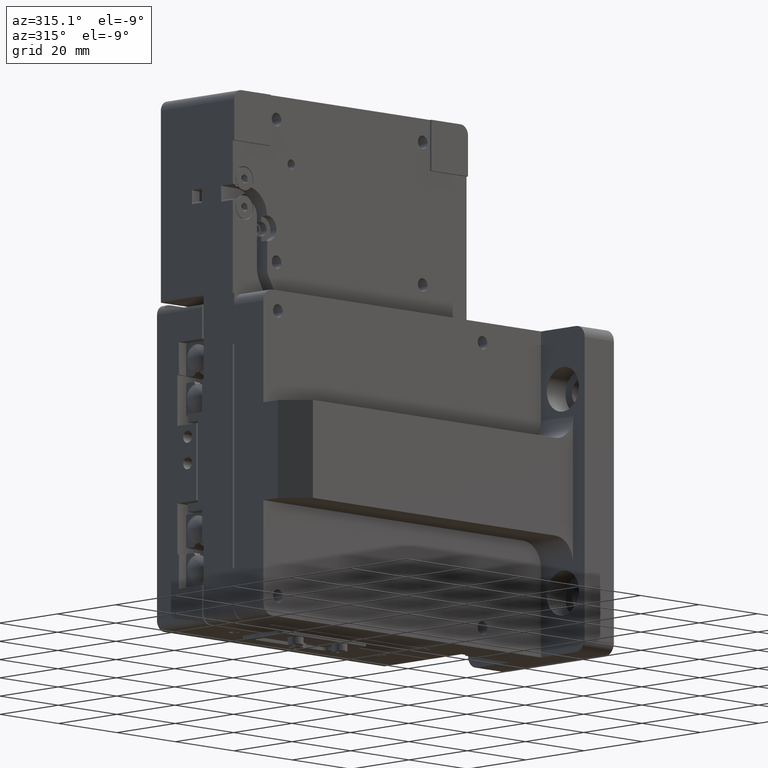
[diagram: clean part render]
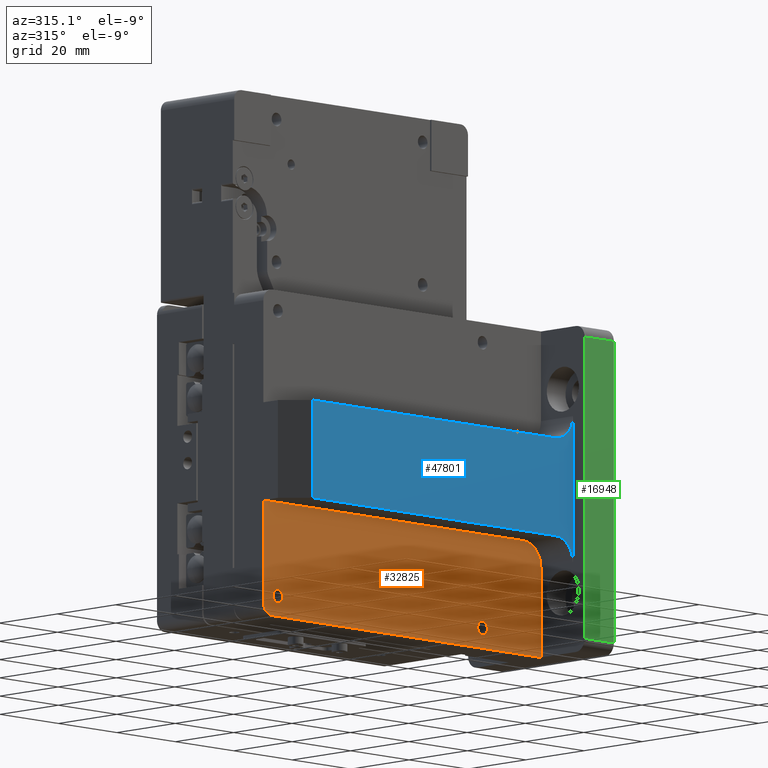
[diagram: same view with three faces highlighted in distinct colors, each labeled with its STEP entity id]
A machine part, auxiliary view with three faces highlighted in distinct colors.
Their STEP definitions:

[orange] entity #32825 — the highlighted planar face has unit normal (0, -1, -0).
#383 = ORIENTED_EDGE ( 'NONE', *, *, #28991, .T. ) ;
#999 = VERTEX_POINT ( 'NONE', #14349 ) ;
#2064 = CIRCLE ( 'NONE', #36663, 1.649999999999984812 ) ;
#2484 = DIRECTION ( 'NONE',  ( 0.000000000000000000, -0.000000000000000000, -1.000000000000000000 ) ) ;
#3181 = CARTESIAN_POINT ( 'NONE',  ( -5.000000000000000888, 100.0000000000000000, -33.35000000000001563 ) ) ;
#3557 = ORIENTED_EDGE ( 'NONE', *, *, #30931, .T. ) ;
#3736 = EDGE_LOOP ( 'NONE', ( #17820, #56244 ) ) ;
#4012 = DIRECTION ( 'NONE',  ( -1.000000000000000000, -1.095614826932720471E-16, 0.000000000000000000 ) ) ;
#5173 = EDGE_CURVE ( 'NONE', #39848, #26115, #7502, .T. ) ;
#7502 = LINE ( 'NONE', #56275, #10694 ) ;
#7508 = CIRCLE ( 'NONE', #24782, 1.649999999999984812 ) ;
#7718 = VERTEX_POINT ( 'NONE', #58597 ) ;
#8069 = VERTEX_POINT ( 'NONE', #54344 ) ;
#8693 = EDGE_CURVE ( 'NONE', #60601, #7718, #34024, .T. ) ;
#10694 = VECTOR ( 'NONE', #22143, 1000.000000000000000 ) ;
#11172 = DIRECTION ( 'NONE',  ( 0.000000000000000000, 0.000000000000000000, -1.000000000000000000 ) ) ;
#11843 = CARTESIAN_POINT ( 'NONE',  ( -5.000000000000000888, 102.0000000000000142, -37.00000000000000000 ) ) ;
#13599 = EDGE_CURVE ( 'NONE', #7718, #60601, #57441, .T. ) ;
#13692 = LINE ( 'NONE', #33131, #20940 ) ;
#14349 = CARTESIAN_POINT ( 'NONE',  ( -4.999999999999992006, 16.00000000000000711, -12.00000000000000000 ) ) ;
#15322 = DIRECTION ( 'NONE',  ( 1.000000000000000000, 0.000000000000000000, 0.000000000000000000 ) ) ;
#15627 = CARTESIAN_POINT ( 'NONE',  ( -5.000000000000000888, 100.0000000000000000, -35.00000000000000000 ) ) ;
#16313 = DIRECTION ( 'NONE',  ( 1.000000000000000000, 0.000000000000000000, 0.000000000000000000 ) ) ;
#17406 = VERTEX_POINT ( 'NONE', #3181 ) ;
#17744 = AXIS2_PLACEMENT_3D ( 'NONE', #50432, #16313, #45960 ) ;
#17820 = ORIENTED_EDGE ( 'NONE', *, *, #13599, .T. ) ;
#18143 = ORIENTED_EDGE ( 'NONE', *, *, #47442, .F. ) ;
#18340 = FACE_BOUND ( 'NONE', #3736, .T. ) ;
#18947 = DIRECTION ( 'NONE',  ( -1.095614826932720471E-16, 1.000000000000000000, -0.000000000000000000 ) ) ;
#20940 = VECTOR ( 'NONE', #41773, 1000.000000000000000 ) ;
#21018 = DIRECTION ( 'NONE',  ( -1.000000000000000000, -2.312964634635740985E-16, 0.000000000000000000 ) ) ;
#22143 = DIRECTION ( 'NONE',  ( 0.000000000000000000, 0.000000000000000000, 1.000000000000000000 ) ) ;
#22807 = CARTESIAN_POINT ( 'NONE',  ( -4.999999999999992006, 16.00000000000001066, -18.00000000000000711 ) ) ;
#24782 = AXIS2_PLACEMENT_3D ( 'NONE', #15627, #15322, #55177 ) ;
#25812 = CARTESIAN_POINT ( 'NONE',  ( -5.000000000000000888, 100.0000000000000000, -35.00000000000000000 ) ) ;
#26115 = VERTEX_POINT ( 'NONE', #26835 ) ;
#26261 = VECTOR ( 'NONE', #2484, 1000.000000000000000 ) ;
#26835 = CARTESIAN_POINT ( 'NONE',  ( -4.999999999999990230, 10.00000000000000888, -18.00000000000000711 ) ) ;
#27265 = CARTESIAN_POINT ( 'NONE',  ( -5.000000000000000888, 105.0000000000000000, -12.00000000000000000 ) ) ;
#28206 = AXIS2_PLACEMENT_3D ( 'NONE', #27265, #4012, #28821 ) ;
#28821 = DIRECTION ( 'NONE',  ( 1.095614826932720471E-16, -1.000000000000000000, 0.000000000000000000 ) ) ;
#28991 = EDGE_CURVE ( 'NONE', #59995, #17406, #7508, .T. ) ;
#29144 = EDGE_LOOP ( 'NONE', ( #383, #48845 ) ) ;
#30315 = CARTESIAN_POINT ( 'NONE',  ( -4.999999999999992006, 30.00000000000000000, -35.00000000000000000 ) ) ;
#30813 = VERTEX_POINT ( 'NONE', #60931 ) ;
#30931 = EDGE_CURVE ( 'NONE', #30813, #39848, #13692, .T. ) ;
#32037 = FACE_OUTER_BOUND ( 'NONE', #50079, .T. ) ;
#32825 = ADVANCED_FACE ( 'NONE', ( #32037, #18340, #46106 ), #51515, .T. ) ;
#33131 = CARTESIAN_POINT ( 'NONE',  ( -5.000000000000000888, 0.000000000000000000, -40.00000000000000000 ) ) ;
#34024 = CIRCLE ( 'NONE', #17744, 1.649999999999984812 ) ;
#36037 = DIRECTION ( 'NONE',  ( 1.000000000000000000, -0.000000000000000000, -0.000000000000000000 ) ) ;
#36112 = ORIENTED_EDGE ( 'NONE', *, *, #58548, .T. ) ;
#36663 = AXIS2_PLACEMENT_3D ( 'NONE', #25812, #45287, #11172 ) ;
#37428 = CARTESIAN_POINT ( 'NONE',  ( -5.000000000000000888, 105.0000000000000000, -12.00000000000000000 ) ) ;
#37484 = VECTOR ( 'NONE', #18947, 1000.000000000000000 ) ;
#39768 = EDGE_CURVE ( 'NONE', #51213, #8069, #61457, .T. ) ;
#39848 = VERTEX_POINT ( 'NONE', #57305 ) ;
#41773 = DIRECTION ( 'NONE',  ( 0.000000000000000000, -1.000000000000000000, -0.000000000000000000 ) ) ;
#42281 = DIRECTION ( 'NONE',  ( 2.891205793294678326E-16, -1.000000000000000000, 0.000000000000000000 ) ) ;
#42979 = CARTESIAN_POINT ( 'NONE',  ( -4.999999999999992006, 30.00000000000000000, -33.35000000000001563 ) ) ;
#44068 = DIRECTION ( 'NONE',  ( 1.000000000000000000, 0.000000000000000000, 0.000000000000000000 ) ) ;
#45287 = DIRECTION ( 'NONE',  ( 1.000000000000000000, 0.000000000000000000, 0.000000000000000000 ) ) ;
#45960 = DIRECTION ( 'NONE',  ( 0.000000000000000000, 0.000000000000000000, -1.000000000000000000 ) ) ;
#46106 = FACE_BOUND ( 'NONE', #29144, .T. ) ;
#46491 = CIRCLE ( 'NONE', #59751, 6.000000000000000000 ) ;
#47442 = EDGE_CURVE ( 'NONE', #30813, #8069, #57743, .T. ) ;
#48580 = DIRECTION ( 'NONE',  ( 0.000000000000000000, 0.000000000000000000, -1.000000000000000000 ) ) ;
#48845 = ORIENTED_EDGE ( 'NONE', *, *, #62805, .T. ) ;
#48968 = CARTESIAN_POINT ( 'NONE',  ( -5.000000000000000888, 100.0000000000000000, -36.64999999999999147 ) ) ;
#50079 = EDGE_LOOP ( 'NONE', ( #18143, #3557, #52564, #52321, #36112, #58110 ) ) ;
#50432 = CARTESIAN_POINT ( 'NONE',  ( -4.999999999999992006, 30.00000000000000000, -35.00000000000000000 ) ) ;
#50953 = CARTESIAN_POINT ( 'NONE',  ( -5.000000000000000888, 105.0000000000000000, 40.00000000000000000 ) ) ;
#51213 = VERTEX_POINT ( 'NONE', #62474 ) ;
#51515 = PLANE ( 'NONE',  #28206 ) ;
#51614 = AXIS2_PLACEMENT_3D ( 'NONE', #11843, #36037, #56474 ) ;
#52321 = ORIENTED_EDGE ( 'NONE', *, *, #54942, .T. ) ;
#52378 = AXIS2_PLACEMENT_3D ( 'NONE', #30315, #44068, #48580 ) ;
#52564 = ORIENTED_EDGE ( 'NONE', *, *, #5173, .T. ) ;
#54344 = CARTESIAN_POINT ( 'NONE',  ( -5.000000000000000888, 105.0000000000000000, -37.00000000000000000 ) ) ;
#54942 = EDGE_CURVE ( 'NONE', #26115, #999, #46491, .T. ) ;
#55177 = DIRECTION ( 'NONE',  ( 0.000000000000000000, 0.000000000000000000, -1.000000000000000000 ) ) ;
#56244 = ORIENTED_EDGE ( 'NONE', *, *, #8693, .T. ) ;
#56275 = CARTESIAN_POINT ( 'NONE',  ( -4.999999999999990230, 10.00000000000000888, -12.00000000000000000 ) ) ;
#56474 = DIRECTION ( 'NONE',  ( 0.000000000000000000, 0.000000000000000000, 1.000000000000000000 ) ) ;
#57305 = CARTESIAN_POINT ( 'NONE',  ( -4.999999999999995559, 10.00000000000000888, -40.00000000000000000 ) ) ;
#57441 = CIRCLE ( 'NONE', #52378, 1.649999999999984812 ) ;
#57743 = CIRCLE ( 'NONE', #51614, 3.000000000000002665 ) ;
#58110 = ORIENTED_EDGE ( 'NONE', *, *, #39768, .T. ) ;
#58548 = EDGE_CURVE ( 'NONE', #999, #51213, #61690, .T. ) ;
#58597 = CARTESIAN_POINT ( 'NONE',  ( -4.999999999999992006, 30.00000000000000000, -36.64999999999999147 ) ) ;
#59751 = AXIS2_PLACEMENT_3D ( 'NONE', #22807, #21018, #42281 ) ;
#59995 = VERTEX_POINT ( 'NONE', #48968 ) ;
#60601 = VERTEX_POINT ( 'NONE', #42979 ) ;
#60931 = CARTESIAN_POINT ( 'NONE',  ( -5.000000000000000888, 102.0000000000000142, -40.00000000000000000 ) ) ;
#61457 = LINE ( 'NONE', #50953, #26261 ) ;
#61690 = LINE ( 'NONE', #37428, #37484 ) ;
#62474 = CARTESIAN_POINT ( 'NONE',  ( -5.000000000000000888, 105.0000000000000000, -12.00000000000000178 ) ) ;
#62805 = EDGE_CURVE ( 'NONE', #17406, #59995, #2064, .T. ) ;

[blue] entity #47801 — the highlighted planar face has unit normal (-0, 1, 0).
#1693 = EDGE_CURVE ( 'NONE', #14297, #57442, #48189, .T. ) ;
#2086 = ORIENTED_EDGE ( 'NONE', *, *, #22808, .T. ) ;
#2225 = CARTESIAN_POINT ( 'NONE',  ( -16.00000000000001066, 98.99999999999992895, 12.00000000000000178 ) ) ;
#2557 = VECTOR ( 'NONE', #57001, 1000.000000000000000 ) ;
#6300 = AXIS2_PLACEMENT_3D ( 'NONE', #44913, #54157, #34995 ) ;
#7963 = DIRECTION ( 'NONE',  ( 0.000000000000000000, -1.000000000000000000, 0.000000000000000000 ) ) ;
#9426 = CARTESIAN_POINT ( 'NONE',  ( -16.00000000000000000, 10.00000000000000888, 18.00000000000000711 ) ) ;
#11062 = CARTESIAN_POINT ( 'NONE',  ( -16.00000000000001066, 98.99999999999995737, -12.00000000000000178 ) ) ;
#12417 = DIRECTION ( 'NONE',  ( -0.000000000000000000, 0.000000000000000000, 1.000000000000000000 ) ) ;
#14182 = DIRECTION ( 'NONE',  ( 0.000000000000000000, -0.000000000000000000, -1.000000000000000000 ) ) ;
#14297 = VERTEX_POINT ( 'NONE', #29682 ) ;
#14808 = CARTESIAN_POINT ( 'NONE',  ( -16.00000000000001421, 98.99999999999994316, 40.00000000000000000 ) ) ;
#16474 = EDGE_CURVE ( 'NONE', #61046, #14297, #52118, .T. ) ;
#17499 = CARTESIAN_POINT ( 'NONE',  ( -16.00000000000000355, 16.00000000000000711, -18.00000000000000711 ) ) ;
#21897 = EDGE_CURVE ( 'NONE', #32625, #48398, #42322, .T. ) ;
#22339 = EDGE_CURVE ( 'NONE', #57442, #32625, #57881, .T. ) ;
#22808 = EDGE_CURVE ( 'NONE', #48398, #57673, #39003, .T. ) ;
#23641 = ORIENTED_EDGE ( 'NONE', *, *, #22339, .T. ) ;
#24876 = ORIENTED_EDGE ( 'NONE', *, *, #1693, .T. ) ;
#25220 = EDGE_CURVE ( 'NONE', #57673, #61046, #26146, .T. ) ;
#26146 = LINE ( 'NONE', #36632, #51949 ) ;
#27669 = DIRECTION ( 'NONE',  ( 1.000000000000000000, 2.312964634635740985E-16, -0.000000000000000000 ) ) ;
#27689 = EDGE_LOOP ( 'NONE', ( #23641, #38279, #2086, #38373, #50530, #24876 ) ) ;
#29617 = CARTESIAN_POINT ( 'NONE',  ( -16.00000000000000355, 0.000000000000000000, 12.00000000000000000 ) ) ;
#29682 = CARTESIAN_POINT ( 'NONE',  ( -16.00000000000000000, 16.00000000000002487, 12.00000000000000000 ) ) ;
#31769 = VECTOR ( 'NONE', #39555, 1000.000000000000000 ) ;
#32625 = VERTEX_POINT ( 'NONE', #11062 ) ;
#34995 = DIRECTION ( 'NONE',  ( 0.000000000000000000, -1.000000000000000000, 0.000000000000000000 ) ) ;
#36632 = CARTESIAN_POINT ( 'NONE',  ( -16.00000000000000000, 10.00000000000000888, 12.00000000000000000 ) ) ;
#36828 = DIRECTION ( 'NONE',  ( -1.460819769243627624E-16, 1.000000000000000000, 0.000000000000000000 ) ) ;
#38279 = ORIENTED_EDGE ( 'NONE', *, *, #21897, .T. ) ;
#38373 = ORIENTED_EDGE ( 'NONE', *, *, #25220, .T. ) ;
#39003 = CIRCLE ( 'NONE', #47161, 6.000000000000000000 ) ;
#39555 = DIRECTION ( 'NONE',  ( 0.000000000000000000, 1.000000000000000000, 0.000000000000000000 ) ) ;
#42322 = LINE ( 'NONE', #61784, #2557 ) ;
#42594 = DIRECTION ( 'NONE',  ( 1.000000000000000000, 1.460819769243627624E-16, -0.000000000000000000 ) ) ;
#44913 = CARTESIAN_POINT ( 'NONE',  ( -16.00000000000000000, 16.00000000000000711, 18.00000000000000711 ) ) ;
#47161 = AXIS2_PLACEMENT_3D ( 'NONE', #17499, #27669, #7963 ) ;
#47396 = CARTESIAN_POINT ( 'NONE',  ( -16.00000000000001421, 105.0000000000000000, -30.00000000000000000 ) ) ;
#47801 = ADVANCED_FACE ( 'NONE', ( #51836 ), #50907, .F. ) ;
#48189 = LINE ( 'NONE', #29617, #31769 ) ;
#48398 = VERTEX_POINT ( 'NONE', #53034 ) ;
#50530 = ORIENTED_EDGE ( 'NONE', *, *, #16474, .T. ) ;
#50676 = AXIS2_PLACEMENT_3D ( 'NONE', #47396, #42594, #36828 ) ;
#50907 = PLANE ( 'NONE',  #50676 ) ;
#51836 = FACE_OUTER_BOUND ( 'NONE', #27689, .T. ) ;
#51949 = VECTOR ( 'NONE', #12417, 1000.000000000000000 ) ;
#52118 = CIRCLE ( 'NONE', #6300, 6.000000000000000000 ) ;
#52235 = CARTESIAN_POINT ( 'NONE',  ( -16.00000000000000000, 10.00000000000000888, -18.00000000000000711 ) ) ;
#53034 = CARTESIAN_POINT ( 'NONE',  ( -16.00000000000000711, 16.00000000000000711, -12.00000000000000000 ) ) ;
#54157 = DIRECTION ( 'NONE',  ( 1.000000000000000000, 2.312964634635740985E-16, -0.000000000000000000 ) ) ;
#57001 = DIRECTION ( 'NONE',  ( 0.000000000000000000, -1.000000000000000000, -0.000000000000000000 ) ) ;
#57442 = VERTEX_POINT ( 'NONE', #2225 ) ;
#57673 = VERTEX_POINT ( 'NONE', #52235 ) ;
#57881 = LINE ( 'NONE', #14808, #58334 ) ;
#58334 = VECTOR ( 'NONE', #14182, 1000.000000000000000 ) ;
#61046 = VERTEX_POINT ( 'NONE', #9426 ) ;
#61784 = CARTESIAN_POINT ( 'NONE',  ( -16.00000000000001421, 0.000000000000000000, -12.00000000000000000 ) ) ;

[green] entity #16948 — the highlighted planar face has unit normal (-0, 1, 0).
#151 = VECTOR ( 'NONE', #49959, 1000.000000000000000 ) ;
#2283 = VERTEX_POINT ( 'NONE', #21188 ) ;
#2350 = CARTESIAN_POINT ( 'NONE',  ( -20.00000000000000355, 10.00000000000000888, -37.00000000000000711 ) ) ;
#4349 = ORIENTED_EDGE ( 'NONE', *, *, #56457, .F. ) ;
#5077 = LINE ( 'NONE', #54140, #14035 ) ;
#7500 = FACE_OUTER_BOUND ( 'NONE', #59800, .T. ) ;
#7601 = EDGE_CURVE ( 'NONE', #49861, #25425, #20919, .T. ) ;
#12460 = EDGE_CURVE ( 'NONE', #2283, #55262, #50684, .T. ) ;
#12734 = EDGE_CURVE ( 'NONE', #2283, #25425, #24184, .T. ) ;
#14035 = VECTOR ( 'NONE', #49060, 1000.000000000000000 ) ;
#16739 = CARTESIAN_POINT ( 'NONE',  ( -20.00000000000001421, 105.0000000000000000, 40.00000000000000000 ) ) ;
#16948 = ADVANCED_FACE ( 'NONE', ( #7500 ), #60433, .F. ) ;
#20919 = LINE ( 'NONE', #24756, #151 ) ;
#21188 = CARTESIAN_POINT ( 'NONE',  ( -20.00000000000000355, 10.00000000000000711, 37.00000000000000000 ) ) ;
#23879 = ORIENTED_EDGE ( 'NONE', *, *, #12734, .F. ) ;
#24184 = LINE ( 'NONE', #33086, #26807 ) ;
#24756 = CARTESIAN_POINT ( 'NONE',  ( -20.00000000000000000, 0.000000000000000000, 40.00000000000000000 ) ) ;
#25425 = VERTEX_POINT ( 'NONE', #37897 ) ;
#26807 = VECTOR ( 'NONE', #29256, 1000.000000000000000 ) ;
#29256 = DIRECTION ( 'NONE',  ( 1.321694076934710155E-16, -1.000000000000000000, -0.000000000000000000 ) ) ;
#30996 = CARTESIAN_POINT ( 'NONE',  ( -20.00000000000000000, -1.982541115402064617E-16, -37.00000000000000000 ) ) ;
#31072 = DIRECTION ( 'NONE',  ( 1.000000000000000000, 1.321694076934710155E-16, -0.000000000000000000 ) ) ;
#31125 = ORIENTED_EDGE ( 'NONE', *, *, #7601, .T. ) ;
#33086 = CARTESIAN_POINT ( 'NONE',  ( -20.00000000000000000, -2.643388153869420409E-15, 37.00000000000000000 ) ) ;
#34308 = ORIENTED_EDGE ( 'NONE', *, *, #12460, .T. ) ;
#34735 = DIRECTION ( 'NONE',  ( 0.000000000000000000, -0.000000000000000000, -1.000000000000000000 ) ) ;
#36163 = DIRECTION ( 'NONE',  ( -1.321694076934710155E-16, 1.000000000000000000, 0.000000000000000000 ) ) ;
#37897 = CARTESIAN_POINT ( 'NONE',  ( -20.00000000000000000, -7.222237291452134449E-32, 37.00000000000000000 ) ) ;
#38317 = VECTOR ( 'NONE', #34735, 1000.000000000000000 ) ;
#49060 = DIRECTION ( 'NONE',  ( -1.321694076934710155E-16, 1.000000000000000000, -0.000000000000000000 ) ) ;
#49861 = VERTEX_POINT ( 'NONE', #30996 ) ;
#49959 = DIRECTION ( 'NONE',  ( 0.000000000000000000, 0.000000000000000000, 1.000000000000000000 ) ) ;
#50684 = LINE ( 'NONE', #59960, #38317 ) ;
#51156 = AXIS2_PLACEMENT_3D ( 'NONE', #16739, #31072, #36163 ) ;
#54140 = CARTESIAN_POINT ( 'NONE',  ( -20.00000000000001421, 105.0000000000000000, -37.00000000000000000 ) ) ;
#55262 = VERTEX_POINT ( 'NONE', #2350 ) ;
#56457 = EDGE_CURVE ( 'NONE', #49861, #55262, #5077, .T. ) ;
#59800 = EDGE_LOOP ( 'NONE', ( #4349, #31125, #23879, #34308 ) ) ;
#59960 = CARTESIAN_POINT ( 'NONE',  ( -20.00000000000000355, 10.00000000000000711, 12.00000000000000000 ) ) ;
#60433 = PLANE ( 'NONE',  #51156 ) ;